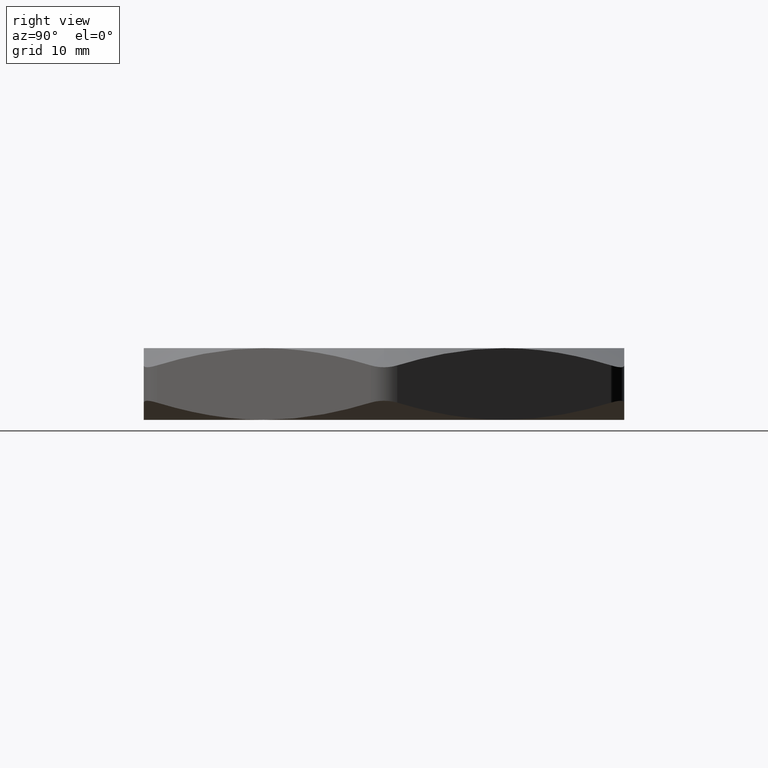
[diagram: clean part render]
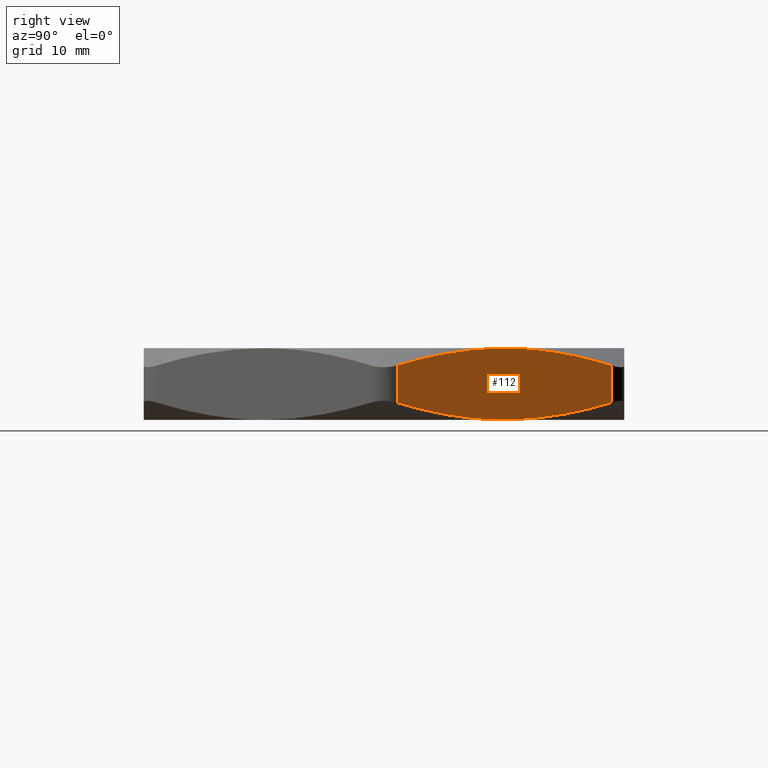
[diagram: same view with one face highlighted and labeled with its STEP entity id]
A machine part, right view. The second image highlights one B-rep face of the part: STEP entity #112.
In plain terms, the highlighted planar face has unit normal (-0.866, -0.5, 0).
Its self-contained STEP definition (entity closure, byte-faithful):
#55 = VERTEX_POINT ( 'NONE', #901 ) ;
#57 = EDGE_CURVE ( 'NONE', #719, #59, #889, .T. ) ;
#58 = ORIENTED_EDGE ( 'NONE', *, *, #57, .F. ) ;
#59 = VERTEX_POINT ( 'NONE', #888 ) ;
#60 = EDGE_CURVE ( 'NONE', #215, #59, #887, .T. ) ;
#107 = ORIENTED_EDGE ( 'NONE', *, *, #214, .F. ) ;
#108 = ORIENTED_EDGE ( 'NONE', *, *, #60, .T. ) ;
#110 = EDGE_LOOP ( 'NONE', ( #107, #108, #58, #126, #123, #118 ) ) ;
#112 = ADVANCED_FACE ( 'NONE', ( #1000 ), #1003, .F. ) ;
#118 = ORIENTED_EDGE ( 'NONE', *, *, #121, .F. ) ;
#120 = VERTEX_POINT ( 'NONE', #1040 ) ;
#121 = EDGE_CURVE ( 'NONE', #138, #120, #1029, .T. ) ;
#123 = ORIENTED_EDGE ( 'NONE', *, *, #124, .T. ) ;
#124 = EDGE_CURVE ( 'NONE', #55, #120, #1071, .T. ) ;
#125 = EDGE_CURVE ( 'NONE', #55, #719, #1067, .T. ) ;
#126 = ORIENTED_EDGE ( 'NONE', *, *, #125, .F. ) ;
#138 = VERTEX_POINT ( 'NONE', #1100 ) ;
#214 = EDGE_CURVE ( 'NONE', #215, #138, #1240, .T. ) ;
#215 = VERTEX_POINT ( 'NONE', #1231 ) ;
#719 = VERTEX_POINT ( 'NONE', #2185 ) ;
#876 = CARTESIAN_POINT ( 'NONE',  ( 0.9781582342842221100, 0.1157802403778668700, 0.04484071946351414500 ) ) ;
#877 = CARTESIAN_POINT ( 'NONE',  ( 0.9398718127573830700, 0.1820942677023508800, 0.02852802109257384500 ) ) ;
#878 = CARTESIAN_POINT ( 'NONE',  ( 0.8818102000647626300, 0.2826599308553556200, 0.01168963448318637000 ) ) ;
#879 = CARTESIAN_POINT ( 'NONE',  ( 0.8623509156285429400, 0.3163644001778221400, 0.007349623624669478900 ) ) ;
#880 = CARTESIAN_POINT ( 'NONE',  ( 0.8329860387546806900, 0.3672258588813558900, 0.002964066360925581500 ) ) ;
#881 = CARTESIAN_POINT ( 'NONE',  ( 0.8231684685533757800, 0.3842303892768900700, 0.001855721427798390700 ) ) ;
#882 = CARTESIAN_POINT ( 'NONE',  ( 0.8034725561546468600, 0.4183447102529144200, 0.0003728051021895873400 ) ) ;
#883 = CARTESIAN_POINT ( 'NONE',  ( 0.7935900301262220900, 0.4354617474412679800, 5.845027552362105000E-017 ) ) ;
#884 = CARTESIAN_POINT ( 'NONE',  ( 0.7837529904249175300, 0.4524999999999999600, 0.0000000000000000000 ) ) ;
#885 = VECTOR ( 'NONE', #937, 39.37007874015748100 ) ;
#886 = CARTESIAN_POINT ( 'NONE',  ( 1.016136473773741500, 0.05000000000000037100, 0.2700000000000000200 ) ) ;
#887 = LINE ( 'NONE', #886, #885 ) ;
#888 = CARTESIAN_POINT ( 'NONE',  ( 1.016136473773741500, 0.05000000000000044700, 0.06487447093666848200 ) ) ;
#889 = B_SPLINE_CURVE_WITH_KNOTS ( 'NONE', 3,
 ( #884, #883, #882, #881, #880, #879, #878, #877, #876, #938 ),
 .UNSPECIFIED., .F., .F.,
 ( 4, 2, 2, 2, 4 ),
 ( 0.01342887310930229200, 0.01491280702405095400, 0.01639674093879961400, 0.01936460876829693800, 0.02530034442729158000 ),
 .UNSPECIFIED. ) ;
#901 = CARTESIAN_POINT ( 'NONE',  ( 0.5513695070760932200, 0.8550000000000003200, 0.06487447093666885700 ) ) ;
#937 = DIRECTION ( 'NONE',  ( 0.0000000000000000000, 0.0000000000000000000, -1.000000000000000000 ) ) ;
#938 = CARTESIAN_POINT ( 'NONE',  ( 1.016136473773741500, 0.05000000000000044700, 0.06487447093666848200 ) ) ;
#1000 = FACE_OUTER_BOUND ( 'NONE', #110, .T. ) ;
#1001 = CARTESIAN_POINT ( 'NONE',  ( 1.045003987233222900, 3.259495798516301800E-016, 0.2700000000000000200 ) ) ;
#1003 = PLANE ( 'NONE',  #1049 ) ;
#1026 = CARTESIAN_POINT ( 'NONE',  ( 0.7837529904249175300, 0.4524999999999999600, 0.2700000000000000200 ) ) ;
#1029 = B_SPLINE_CURVE_WITH_KNOTS ( 'NONE', 3,
 ( #1026, #1082, #1081, #1080, #1079, #1078, #1077, #1076, #1075, #1074 ),
 .UNSPECIFIED., .F., .F.,
 ( 4, 2, 2, 2, 4 ),
 ( 0.01342887310930227600, 0.01491280702405094000, 0.01639674093879960400, 0.01936460876829692800, 0.02530034442729158300 ),
 .UNSPECIFIED. ) ;
#1040 = CARTESIAN_POINT ( 'NONE',  ( 0.5513695070760931100, 0.8550000000000003200, 0.2051255290633314000 ) ) ;
#1047 = DIRECTION ( 'NONE',  ( 0.4999999999999997200, -0.8660254037844388200, 0.0000000000000000000 ) ) ;
#1048 = DIRECTION ( 'NONE',  ( -0.8660254037844388200, -0.4999999999999997200, 0.0000000000000000000 ) ) ;
#1049 = AXIS2_PLACEMENT_3D ( 'NONE', #1001, #1048, #1047 ) ;
#1059 = CARTESIAN_POINT ( 'NONE',  ( 0.7837529904249175300, 0.4524999999999999600, 0.0000000000000000000 ) ) ;
#1060 = CARTESIAN_POINT ( 'NONE',  ( 0.7442458496614808800, 0.5209283750640477700, 6.322734125961232400E-017 ) ) ;
#1061 = CARTESIAN_POINT ( 'NONE',  ( 0.7051734122901491800, 0.5886038217667477500, 0.006052579135682159700 ) ) ;
#1062 = CARTESIAN_POINT ( 'NONE',  ( 0.6277696882458021500, 0.7226710045065974900, 0.02847712606262854000 ) ) ;
#1063 = CARTESIAN_POINT ( 'NONE',  ( 0.5894345128762531500, 0.7890694759637197900, 0.04479494970886092200 ) ) ;
#1064 = CARTESIAN_POINT ( 'NONE',  ( 0.5513695070760932200, 0.8550000000000003200, 0.06487447093666885700 ) ) ;
#1067 = B_SPLINE_CURVE_WITH_KNOTS ( 'NONE', 3,
 ( #1064, #1063, #1062, #1061, #1060, #1059 ),
 .UNSPECIFIED., .F., .F.,
 ( 4, 2, 4 ),
 ( 0.001509436401969135800, 0.007469154755635715900, 0.01342887310930229200 ),
 .UNSPECIFIED. ) ;
#1068 = DIRECTION ( 'NONE',  ( 0.0000000000000000000, 0.0000000000000000000, 1.000000000000000000 ) ) ;
#1069 = VECTOR ( 'NONE', #1068, 39.37007874015748100 ) ;
#1070 = CARTESIAN_POINT ( 'NONE',  ( 0.5513695070760932200, 0.8550000000000003200, 0.2700000000000000200 ) ) ;
#1071 = LINE ( 'NONE', #1070, #1069 ) ;
#1074 = CARTESIAN_POINT ( 'NONE',  ( 0.5513695070760931100, 0.8550000000000003200, 0.2051255290633314000 ) ) ;
#1075 = CARTESIAN_POINT ( 'NONE',  ( 0.5893477465656128400, 0.7892197596221342000, 0.2251592805364858700 ) ) ;
#1076 = CARTESIAN_POINT ( 'NONE',  ( 0.6276341680924517600, 0.7229057322976500900, 0.2414719789074261700 ) ) ;
#1077 = CARTESIAN_POINT ( 'NONE',  ( 0.6856957807850722100, 0.6223400691446447900, 0.2583103655168135800 ) ) ;
#1078 = CARTESIAN_POINT ( 'NONE',  ( 0.7051550652212919000, 0.5886355998221779500, 0.2626503763753304500 ) ) ;
#1079 = CARTESIAN_POINT ( 'NONE',  ( 0.7345199420951541400, 0.5377741411186441900, 0.2670359336390744100 ) ) ;
#1080 = CARTESIAN_POINT ( 'NONE',  ( 0.7443375122964590600, 0.5207696107231101200, 0.2681442785722016300 ) ) ;
#1081 = CARTESIAN_POINT ( 'NONE',  ( 0.7640334246951879800, 0.4866552897470855000, 0.2696271948978104500 ) ) ;
#1082 = CARTESIAN_POINT ( 'NONE',  ( 0.7739159507236125200, 0.4695382525587320500, 0.2699999999999999600 ) ) ;
#1100 = CARTESIAN_POINT ( 'NONE',  ( 0.7837529904249175300, 0.4524999999999999600, 0.2700000000000000200 ) ) ;
#1231 = CARTESIAN_POINT ( 'NONE',  ( 1.016136473773741500, 0.05000000000000037100, 0.2051255290633314000 ) ) ;
#1234 = CARTESIAN_POINT ( 'NONE',  ( 0.7837529904249175300, 0.4524999999999999600, 0.2700000000000000200 ) ) ;
#1235 = CARTESIAN_POINT ( 'NONE',  ( 0.8232601311883542800, 0.3840716249359523700, 0.2699999999999999600 ) ) ;
#1236 = CARTESIAN_POINT ( 'NONE',  ( 0.8623325685596859900, 0.3163961782332526700, 0.2639474208643178800 ) ) ;
#1237 = CARTESIAN_POINT ( 'NONE',  ( 0.9397362926040329100, 0.1823289954934032800, 0.2415228739373716800 ) ) ;
#1238 = CARTESIAN_POINT ( 'NONE',  ( 0.9780714679735816900, 0.1159305240362809300, 0.2252050502911392700 ) ) ;
#1239 = CARTESIAN_POINT ( 'NONE',  ( 1.016136473773741500, 0.05000000000000037100, 0.2051255290633314000 ) ) ;
#1240 = B_SPLINE_CURVE_WITH_KNOTS ( 'NONE', 3,
 ( #1239, #1238, #1237, #1236, #1235, #1234 ),
 .UNSPECIFIED., .F., .F.,
 ( 4, 2, 4 ),
 ( 0.001509436401969139000, 0.007469154755635707200, 0.01342887310930227600 ),
 .UNSPECIFIED. ) ;
#2185 = CARTESIAN_POINT ( 'NONE',  ( 0.7837529904249175300, 0.4524999999999999600, 0.0000000000000000000 ) ) ;